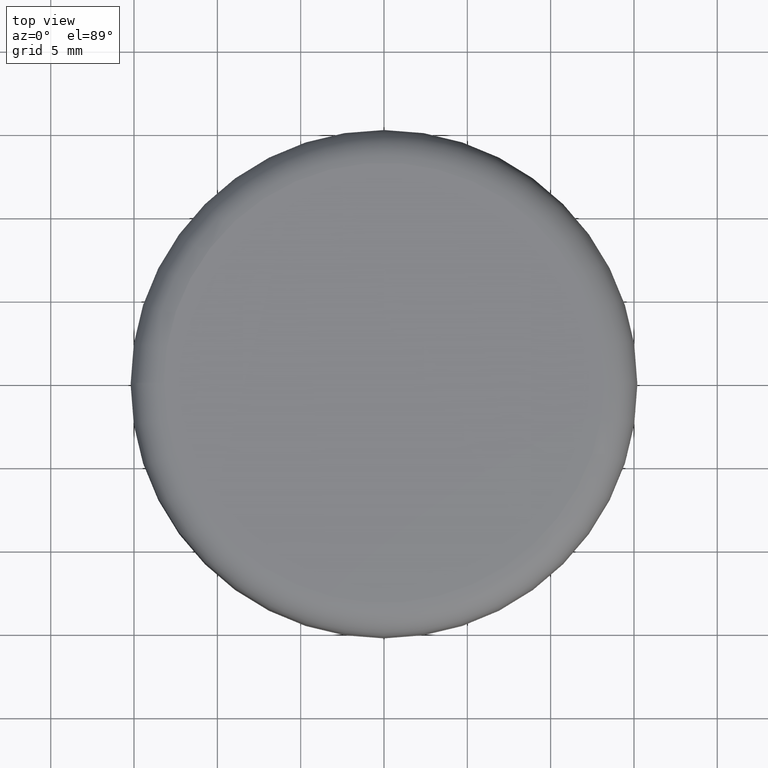
[diagram: clean part render]
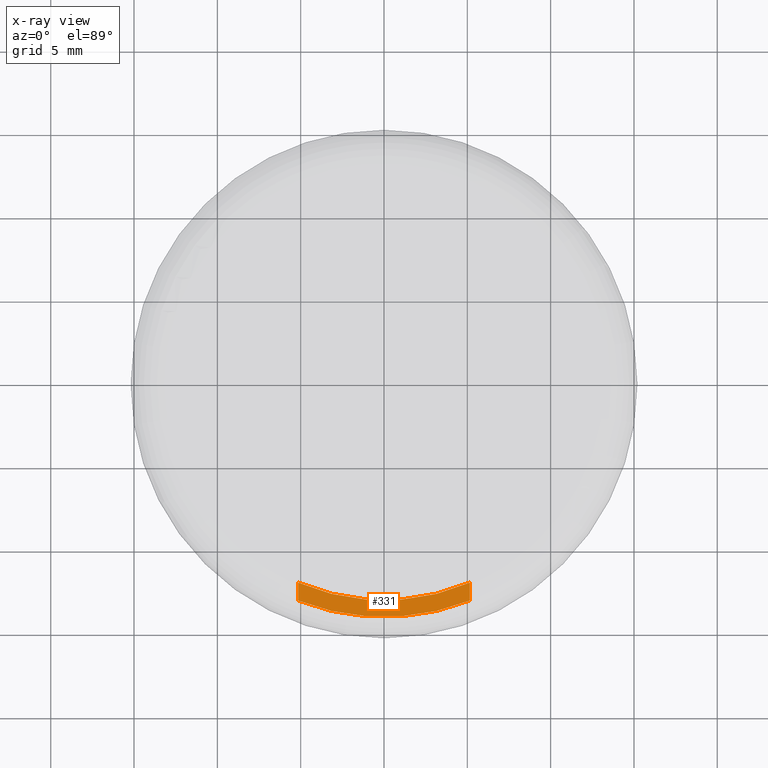
[diagram: x-ray — body ghosted, one internal face saturated and labeled with its STEP entity id]
A machine part, top view, then the same camera in x-ray: the body is ghosted and one INTERNAL B-rep face — a face not visible from any outside direction — is saturated and labeled: STEP entity #331.
In plain terms, the highlighted planar face has unit normal (0, 0, 1).
Its self-contained STEP definition (entity closure, byte-faithful):
#68=PLANE('',#1035);
#185=LINE('',#1545,#277);
#190=LINE('',#1570,#282);
#277=VECTOR('',#1256,1.);
#282=VECTOR('',#1277,1.);
#331=ADVANCED_FACE('',(#385),#68,.T.);
#385=FACE_OUTER_BOUND('',#445,.T.);
#445=EDGE_LOOP('',(#691,#692,#693,#694));
#691=ORIENTED_EDGE('',*,*,#917,.T.);
#692=ORIENTED_EDGE('',*,*,#925,.T.);
#693=ORIENTED_EDGE('',*,*,#928,.T.);
#694=ORIENTED_EDGE('',*,*,#812,.T.);
#728=VERTEX_POINT('',#1326);
#729=VERTEX_POINT('',#1328);
#798=VERTEX_POINT('',#1546);
#802=VERTEX_POINT('',#1565);
#812=EDGE_CURVE('',#729,#728,#936,.T.);
#917=EDGE_CURVE('',#728,#798,#185,.T.);
#925=EDGE_CURVE('',#798,#802,#958,.T.);
#928=EDGE_CURVE('',#802,#729,#190,.T.);
#936=CIRCLE('',#966,12.9999999999998);
#958=CIRCLE('',#1029,14.);
#966=AXIS2_PLACEMENT_3D('',#1327,#1058,#1059);
#1029=AXIS2_PLACEMENT_3D('',#1564,#1270,#1271);
#1035=AXIS2_PLACEMENT_3D('',#1579,#1286,#1287);
#1058=DIRECTION('',(0.,0.,-1.));
#1059=DIRECTION('',(1.,0.,0.));
#1256=DIRECTION('',(-1.54329E-013,-1.,4.104494E-016));
#1270=DIRECTION('',(0.,0.,1.));
#1271=DIRECTION('',(1.,0.,0.));
#1277=DIRECTION('',(-1.321647E-013,1.,2.401129E-014));
#1286=DIRECTION('',(0.,0.,1.));
#1287=DIRECTION('',(0.,1.,0.));
#1326=CARTESIAN_POINT('',(-5.15000000001067,-11.9363939278159,194.849999999999));
#1327=CARTESIAN_POINT('',(-1.097307127E-011,1.02162336674968E-013,194.85));
#1328=CARTESIAN_POINT('',(5.14999999998954,-11.9363939278154,194.85));
#1545=CARTESIAN_POINT('',(-5.15000000001067,-11.9363939278159,194.849999999999));
#1546=CARTESIAN_POINT('',(-5.15000000001084,-13.0183524303192,194.849999999999));
#1564=CARTESIAN_POINT('',(-1.097034827E-011,1.02014212674968E-013,194.849999999999));
#1565=CARTESIAN_POINT('',(5.14999999998968,-13.0183524303189,194.85));
#1570=CARTESIAN_POINT('',(5.14999999998968,-13.0183524303189,194.85));
#1579=CARTESIAN_POINT('',(13.5249999999888,1.02162336674968E-013,194.85));